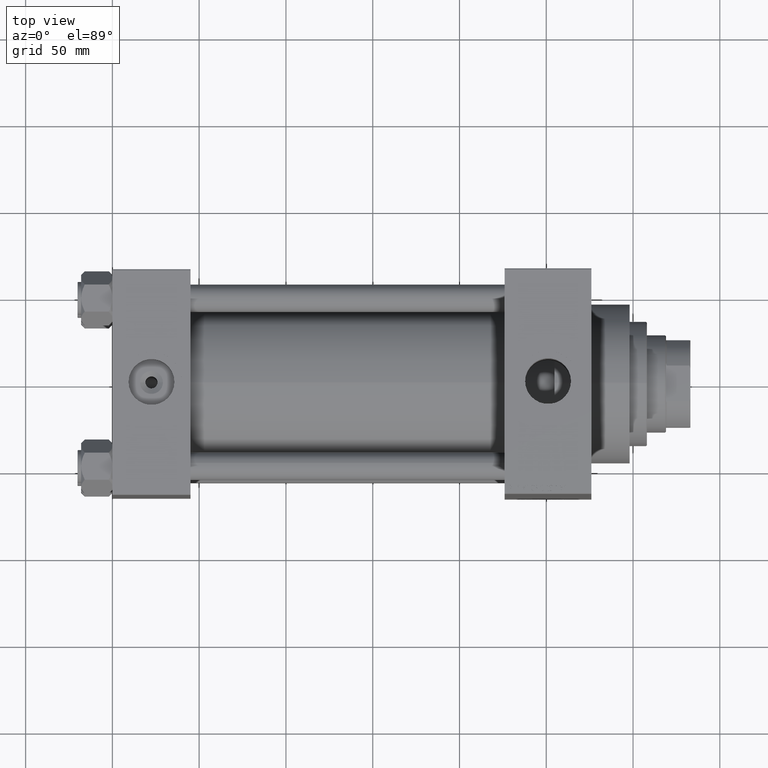
[diagram: clean part render]
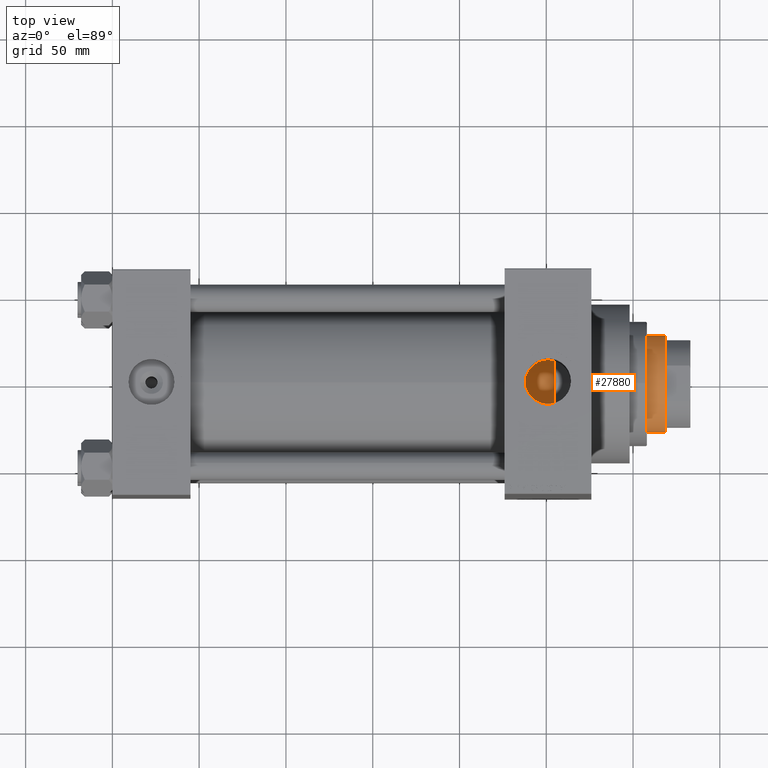
[diagram: same view with one face highlighted and labeled with its STEP entity id]
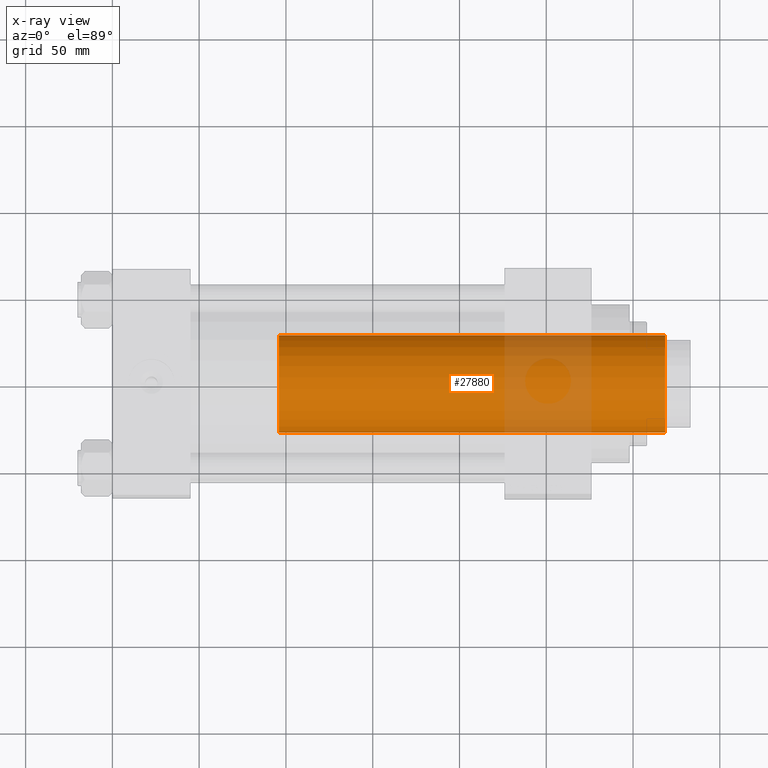
[diagram: x-ray of the same camera — body ghosted, the highlighted face saturated]
A machine part, top view. The second image highlights one B-rep face of the part: STEP entity #27880.
The next image is the same camera in x-ray: the body ghosted, the highlighted face saturated — about 18% of this face is hidden behind the body in this view.
In plain terms, the highlighted cylindrical surface (partial cylindrical patch) has radius 28 mm, axis along (-1, 0, 0).
Its self-contained STEP definition (entity closure, byte-faithful):
#707 = CARTESIAN_POINT ( 'NONE',  ( 28.00000000000000000, 3.429011037612588487E-15, 51.00000000000000000 ) ) ;
#2461 = DIRECTION ( 'NONE',  ( -0.000000000000000000, -0.000000000000000000, -1.000000000000000000 ) ) ;
#5952 = CYLINDRICAL_SURFACE ( 'NONE', #27237, 28.00000000000000000 ) ;
#6080 = DIRECTION ( 'NONE',  ( 1.000000000000000000, 0.000000000000000000, 0.000000000000000000 ) ) ;
#8680 = DIRECTION ( 'NONE',  ( 1.000000000000000000, 0.000000000000000000, 0.000000000000000000 ) ) ;
#9327 = CARTESIAN_POINT ( 'NONE',  ( 0.000000000000000000, 0.000000000000000000, 274.0000000000000000 ) ) ;
#10522 = VERTEX_POINT ( 'NONE', #707 ) ;
#10530 = VECTOR ( 'NONE', #39839, 1000.000000000000000 ) ;
#10712 = ORIENTED_EDGE ( 'NONE', *, *, #45264, .T. ) ;
#11823 = DIRECTION ( 'NONE',  ( -1.000000000000000000, 0.000000000000000000, 0.000000000000000000 ) ) ;
#16070 = CARTESIAN_POINT ( 'NONE',  ( -28.00000000000000000, 0.000000000000000000, 273.5000000000001137 ) ) ;
#17563 = CARTESIAN_POINT ( 'NONE',  ( -28.00000000000000000, 0.000000000000000000, 51.00000000000000000 ) ) ;
#19657 = EDGE_CURVE ( 'NONE', #36802, #10522, #29263, .T. ) ;
#24134 = DIRECTION ( 'NONE',  ( 0.000000000000000000, 0.000000000000000000, 1.000000000000000000 ) ) ;
#24322 = EDGE_CURVE ( 'NONE', #36802, #47154, #44859, .T. ) ;
#25110 = CARTESIAN_POINT ( 'NONE',  ( -28.00000000000000000, 0.000000000000000000, 274.0000000000000000 ) ) ;
#25234 = ORIENTED_EDGE ( 'NONE', *, *, #19657, .F. ) ;
#25766 = EDGE_LOOP ( 'NONE', ( #25234, #28151, #10712, #46221 ) ) ;
#27237 = AXIS2_PLACEMENT_3D ( 'NONE', #9327, #31088, #11823 ) ;
#27270 = CARTESIAN_POINT ( 'NONE',  ( 28.00000000000000000, 3.429011037612588487E-15, 273.5000000000001137 ) ) ;
#27595 = CIRCLE ( 'NONE', #33771, 28.00000000000000000 ) ;
#27880 = ADVANCED_FACE ( 'NONE', ( #42428 ), #5952, .T. ) ;
#28151 = ORIENTED_EDGE ( 'NONE', *, *, #24322, .T. ) ;
#28495 = LINE ( 'NONE', #25110, #10530 ) ;
#29263 = LINE ( 'NONE', #36279, #34048 ) ;
#31004 = AXIS2_PLACEMENT_3D ( 'NONE', #42559, #45693, #6080 ) ;
#31088 = DIRECTION ( 'NONE',  ( -0.000000000000000000, -0.000000000000000000, -1.000000000000000000 ) ) ;
#33771 = AXIS2_PLACEMENT_3D ( 'NONE', #41777, #24134, #8680 ) ;
#34048 = VECTOR ( 'NONE', #2461, 1000.000000000000000 ) ;
#36279 = CARTESIAN_POINT ( 'NONE',  ( 28.00000000000000000, 3.429011037612588487E-15, 274.0000000000000000 ) ) ;
#36802 = VERTEX_POINT ( 'NONE', #27270 ) ;
#39707 = EDGE_CURVE ( 'NONE', #43738, #10522, #27595, .T. ) ;
#39839 = DIRECTION ( 'NONE',  ( -0.000000000000000000, -0.000000000000000000, -1.000000000000000000 ) ) ;
#41777 = CARTESIAN_POINT ( 'NONE',  ( 0.000000000000000000, 0.000000000000000000, 51.00000000000000000 ) ) ;
#42428 = FACE_OUTER_BOUND ( 'NONE', #25766, .T. ) ;
#42559 = CARTESIAN_POINT ( 'NONE',  ( 0.000000000000000000, 0.000000000000000000, 273.5000000000001137 ) ) ;
#43738 = VERTEX_POINT ( 'NONE', #17563 ) ;
#44859 = CIRCLE ( 'NONE', #31004, 28.00000000000000000 ) ;
#45264 = EDGE_CURVE ( 'NONE', #47154, #43738, #28495, .T. ) ;
#45693 = DIRECTION ( 'NONE',  ( 0.000000000000000000, 0.000000000000000000, -1.000000000000000000 ) ) ;
#46221 = ORIENTED_EDGE ( 'NONE', *, *, #39707, .T. ) ;
#47154 = VERTEX_POINT ( 'NONE', #16070 ) ;